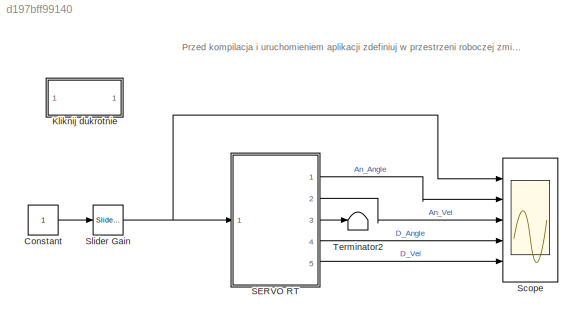
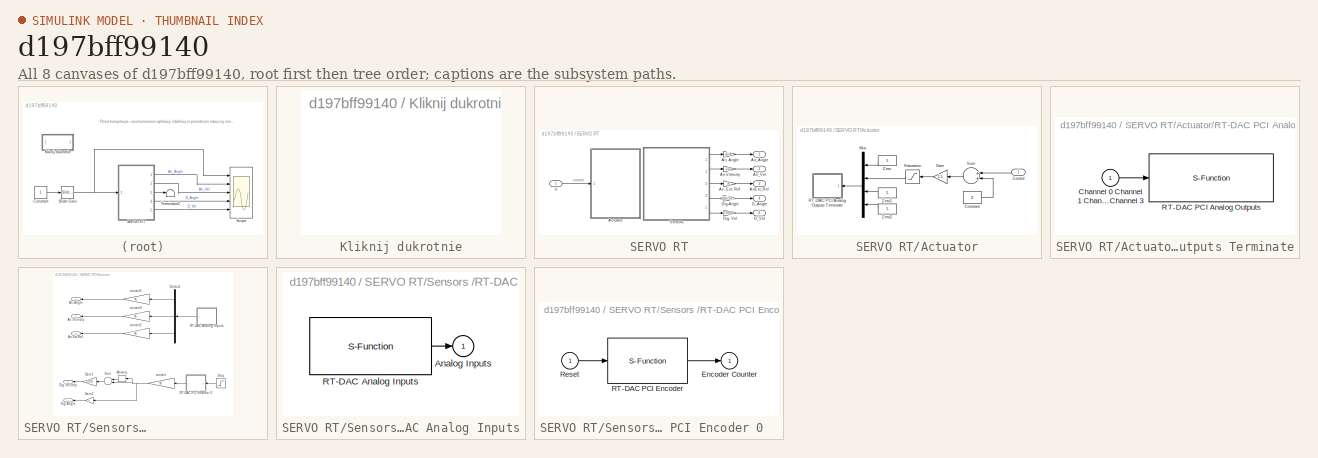
[diagram: thumbnail index - all 8 canvases of the model, root first then tree order]
MODEL slx_d197bff99140
KIND model
CONFIG AbsTol = 1e-6
CONFIG FixedStep = 0.01
CONFIG MaxStep = auto
CONFIG MinStep = auto
CONFIG RelTol = 1e-3
CONFIG SampleTimeConstraint = Unconstrained
CONFIG Solver = ode5
CONFIG SolverMode = SingleTasking
CONFIG SolverName = ode5
CONFIG StartTime = 0.0
CONFIG StopTime = 600
BLOCK [Constant] Constant
BLOCK [SubSystem] Kliknij dukrotnie
  OpenFcn = T0=0.01
  Ports = []
  RequestExecContextInheritance = off
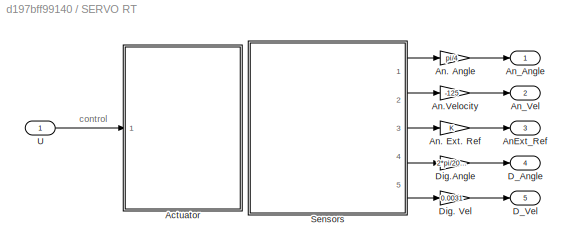
BLOCK [SubSystem] SERVO RT
  Ports = [1, 5]
  RequestExecContextInheritance = off
BLOCK [SubSystem] SERVO RT/Actuator
  Ports = [1]
  RequestExecContextInheritance = off
BLOCK [Constant] SERVO RT/Actuator/Constant
  Value = 2
BLOCK [Inport] SERVO RT/Actuator/Control
  IconDisplay = Port number
BLOCK [Gain] SERVO RT/Actuator/Gain
  Gain = 2.5
  SaturateOnIntegerOverflow = off
BLOCK [Mux] SERVO RT/Actuator/Mux
  Ports = [4, 1]
BLOCK [SubSystem] SERVO RT/Actuator/RT-DAC PCI Analog Outputs Terminate
  Ports = [1]
  RequestExecContextInheritance = off
  ShowPortLabels = none
BLOCK [Inport] SERVO RT/Actuator/RT-DAC PCI Analog Outputs Terminate/Channel 0 Channel 1 Channel 2 Channel 3
  IconDisplay = Port number
BLOCK [S-Function] SERVO RT/Actuator/RT-DAC PCI Analog Outputs Terminate/RT-DAC PCI Analog Outputs 
  FunctionName = rtdacpci_analogoutputs
  Parameters = BaseAddress, VoltRange, SetOutputsFlag, SetOutputsValue, T0
  Ports = [1]
BLOCK [Saturate] SERVO RT/Actuator/Saturation
  InputPortMap = u0
  LowerLimit = 2.5
  Ports = [1, 1]
  UpperLimit = 7.5
BLOCK [Sum] SERVO RT/Actuator/Sum
  Ports = [2, 1]
BLOCK [Constant] SERVO RT/Actuator/Zero
  Value = 5
BLOCK [Constant] SERVO RT/Actuator/Zero1
  Value = 5
BLOCK [Constant] SERVO RT/Actuator/Zero2
  Value = 5
BLOCK [Gain] SERVO RT/An. Angle
  Gain = pi/4
BLOCK [Gain] SERVO RT/An. Ext. Ref
BLOCK [Gain] SERVO RT/An.Velocity
  Gain = -125
BLOCK [Outport] SERVO RT/AnExt_Ref
  IconDisplay = Port number
  Port = 3
BLOCK [Outport] SERVO RT/An_Angle
  IconDisplay = Port number
BLOCK [Outport] SERVO RT/An_Vel
  IconDisplay = Port number
  Port = 2
BLOCK [Outport] SERVO RT/D_Angle
  IconDisplay = Port number
  Port = 4
BLOCK [Outport] SERVO RT/D_Vel
  IconDisplay = Port number
  Port = 5
BLOCK [Gain] SERVO RT/Dig. Vel
  Gain = 0.0031
BLOCK [Gain] SERVO RT/Dig.Angle
  Gain = 2*pi/2000
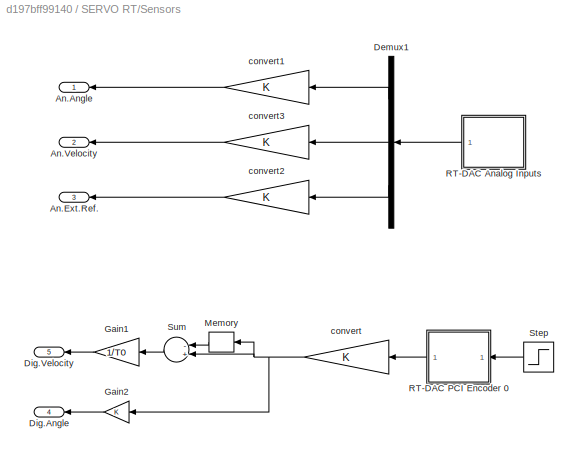
BLOCK [SubSystem] SERVO RT/Sensors                      
  Ports = [0, 5]
  RequestExecContextInheritance = off
BLOCK [Outport] SERVO RT/Sensors                      /An.Angle
  IconDisplay = Port number
  InitialOutput = 0
BLOCK [Outport] SERVO RT/Sensors                      /An.Ext.Ref.
  IconDisplay = Port number
  InitialOutput = 0
  Port = 3
BLOCK [Outport] SERVO RT/Sensors                      /An.Velocity
  IconDisplay = Port number
  InitialOutput = 0
  Port = 2
BLOCK [Demux] SERVO RT/Sensors                      /Demux1
  Outputs = 3
  Ports = [1, 3]
BLOCK [Outport] SERVO RT/Sensors                      /Dig.Angle
  IconDisplay = Port number
  InitialOutput = 0
  Port = 4
BLOCK [Outport] SERVO RT/Sensors                      /Dig.Velocity
  IconDisplay = Port number
  InitialOutput = 0
  Port = 5
BLOCK [Gain] SERVO RT/Sensors                      /Gain1
  Gain = 1/T0
BLOCK [Gain] SERVO RT/Sensors                      /Gain2
BLOCK [Memory] SERVO RT/Sensors                      /Memory
BLOCK [SubSystem] SERVO RT/Sensors                      /RT-DAC Analog Inputs
  Ports = [0, 1]
  RequestExecContextInheritance = off
  ShowPortLabels = none
BLOCK [Outport] SERVO RT/Sensors                      /RT-DAC Analog Inputs/Analog Inputs
  IconDisplay = Port number
BLOCK [S-Function] SERVO RT/Sensors                      /RT-DAC Analog Inputs/RT-DAC Analog Inputs
  FunctionName = rtdacpci_analoginputs
  Parameters = BaseAddress, Chan, Gain, T0
  Ports = [0, 1]
BLOCK [SubSystem] SERVO RT/Sensors                      /RT-DAC PCI Encoder 0  
  Ports = [1, 1]
  RequestExecContextInheritance = off
  ShowPortLabels = none
BLOCK [Outport] SERVO RT/Sensors                      /RT-DAC PCI Encoder 0  /Encoder Counter
  IconDisplay = Port number
BLOCK [S-Function] SERVO RT/Sensors                      /RT-DAC PCI Encoder 0  /RT-DAC PCI Encoder
  FunctionName = rtdacpci_encoder
  Parameters = BaseAddress, ChannelIdx, T0
  Ports = [1, 1]
BLOCK [Inport] SERVO RT/Sensors                      /RT-DAC PCI Encoder 0  /Reset
  IconDisplay = Port number
BLOCK [Step] SERVO RT/Sensors                      /Step
  After = 0
  Before = 1
  SampleTime = 0
  Time = T0
BLOCK [Sum] SERVO RT/Sensors                      /Sum
  Inputs = -+
  Ports = [2, 1]
BLOCK [Gain] SERVO RT/Sensors                      /convert
BLOCK [Gain] SERVO RT/Sensors                      /convert1
BLOCK [Gain] SERVO RT/Sensors                      /convert2
BLOCK [Gain] SERVO RT/Sensors                      /convert3
  SaturateOnIntegerOverflow = off
BLOCK [Inport] SERVO RT/U
  IconDisplay = Port number
BLOCK [Scope] Scope
  DataFormat = StructureWithTime
  Decimation = 2
  ExtModeUploadOption = log
  Floating = off
  MaxDataPoints = 40000
  NumInputPorts = 5
  Ports = [5]
  SampleTime = 0
  SaveName = obiekt
  SaveToWorkspace = on
  TimeRange = 15
  YMax = -0.446548~4~130~800~70
  YMin = -0.493553~-4~0~0~0
BLOCK [Reference] Slider Gain  REF=simulink/Math
Operations/Slider
Gain
  Ports = [1, 1]
  SourceBlock = simulink/Math\nOperations/Slider\nGain
  SourceType = Slider Gain
  gain = 0
  high = 1
  low = -1
BLOCK [Terminator] Terminator2
ANNOTATION (root): Przed kompilacja i uruchomieniem aplikacji zdefiniuj w przestrzeni roboczej zmienna T0.
ANNOTATION SERVO RT: control
LINE Constant:1 -> Slider Gain:1
LINE SERVO RT/Actuator/Constant:1 -> SERVO RT/Actuator/Sum:2
LINE SERVO RT/Actuator/Control:1 -> SERVO RT/Actuator/Sum:1
LINE SERVO RT/Actuator/Gain:1 -> SERVO RT/Actuator/Saturation:1
LINE SERVO RT/Actuator/Mux:1 -> SERVO RT/Actuator/RT-DAC PCI Analog Outputs Terminate:1
LINE SERVO RT/Actuator/RT-DAC PCI Analog Outputs Terminate/Channel 0 Channel 1 Channel 2 Channel 3:1 -> SERVO RT/Actuator/RT-DAC PCI Analog Outputs Terminate/RT-DAC PCI Analog Outputs :1
LINE SERVO RT/Actuator/Saturation:1 -> SERVO RT/Actuator/Mux:2
LINE SERVO RT/Actuator/Sum:1 -> SERVO RT/Actuator/Gain:1
LINE SERVO RT/Actuator/Zero1:1 -> SERVO RT/Actuator/Mux:3
LINE SERVO RT/Actuator/Zero2:1 -> SERVO RT/Actuator/Mux:4
LINE SERVO RT/Actuator/Zero:1 -> SERVO RT/Actuator/Mux:1
LINE SERVO RT/An. Angle:1 -> SERVO RT/An_Angle:1
LINE SERVO RT/An. Ext. Ref:1 -> SERVO RT/AnExt_Ref:1
LINE SERVO RT/An.Velocity:1 -> SERVO RT/An_Vel:1
LINE SERVO RT/Dig. Vel:1 -> SERVO RT/D_Vel:1
LINE SERVO RT/Dig.Angle:1 -> SERVO RT/D_Angle:1
LINE SERVO RT/Sensors                      /Demux1:1 -> SERVO RT/Sensors                      /convert1:1
LINE SERVO RT/Sensors                      /Demux1:2 -> SERVO RT/Sensors                      /convert3:1
LINE SERVO RT/Sensors                      /Demux1:3 -> SERVO RT/Sensors                      /convert2:1
LINE SERVO RT/Sensors                      /Gain1:1 -> SERVO RT/Sensors                      /Dig.Velocity:1
LINE SERVO RT/Sensors                      /Gain2:1 -> SERVO RT/Sensors                      /Dig.Angle:1
LINE SERVO RT/Sensors                      /Memory:1 -> SERVO RT/Sensors                      /Sum:1
LINE SERVO RT/Sensors                      /RT-DAC Analog Inputs/RT-DAC Analog Inputs:1 -> SERVO RT/Sensors                      /RT-DAC Analog Inputs/Analog Inputs:1
LINE SERVO RT/Sensors                      /RT-DAC Analog Inputs:1 -> SERVO RT/Sensors                      /Demux1:1
LINE SERVO RT/Sensors                      /RT-DAC PCI Encoder 0  /RT-DAC PCI Encoder:1 -> SERVO RT/Sensors                      /RT-DAC PCI Encoder 0  /Encoder Counter:1
LINE SERVO RT/Sensors                      /RT-DAC PCI Encoder 0  /Reset:1 -> SERVO RT/Sensors                      /RT-DAC PCI Encoder 0  /RT-DAC PCI Encoder:1
LINE SERVO RT/Sensors                      /RT-DAC PCI Encoder 0  :1 -> SERVO RT/Sensors                      /convert:1
LINE SERVO RT/Sensors                      /Step:1 -> SERVO RT/Sensors                      /RT-DAC PCI Encoder 0  :1
LINE SERVO RT/Sensors                      /Sum:1 -> SERVO RT/Sensors                      /Gain1:1
LINE SERVO RT/Sensors                      /convert1:1 -> SERVO RT/Sensors                      /An.Angle:1
LINE SERVO RT/Sensors                      /convert2:1 -> SERVO RT/Sensors                      /An.Ext.Ref.:1
LINE SERVO RT/Sensors                      /convert3:1 -> SERVO RT/Sensors                      /An.Velocity:1
NET SERVO RT/Sensors                      /convert:1 -> SERVO RT/Sensors                      /Gain2:1, SERVO RT/Sensors                      /Memory:1, SERVO RT/Sensors                      /Sum:2
LINE SERVO RT/Sensors                      :1 -> SERVO RT/An. Angle:1
LINE SERVO RT/Sensors                      :2 -> SERVO RT/An.Velocity:1
LINE SERVO RT/Sensors                      :3 -> SERVO RT/An. Ext. Ref:1
LINE SERVO RT/Sensors                      :4 -> SERVO RT/Dig.Angle:1
LINE SERVO RT/Sensors                      :5 -> SERVO RT/Dig. Vel:1
LINE SERVO RT/U:1 -> SERVO RT/Actuator:1
LINE SERVO RT:1 -> Scope:2
LINE SERVO RT:2 -> Scope:3
LINE SERVO RT:3 -> Terminator2:1
LINE SERVO RT:4 -> Scope:4
LINE SERVO RT:5 -> Scope:5
NET Slider Gain:1 -> SERVO RT:1, Scope:1
note: NET lines group one-source signal fan-out (src -> all destinations, sorted); 1:1 wires keep LINE
